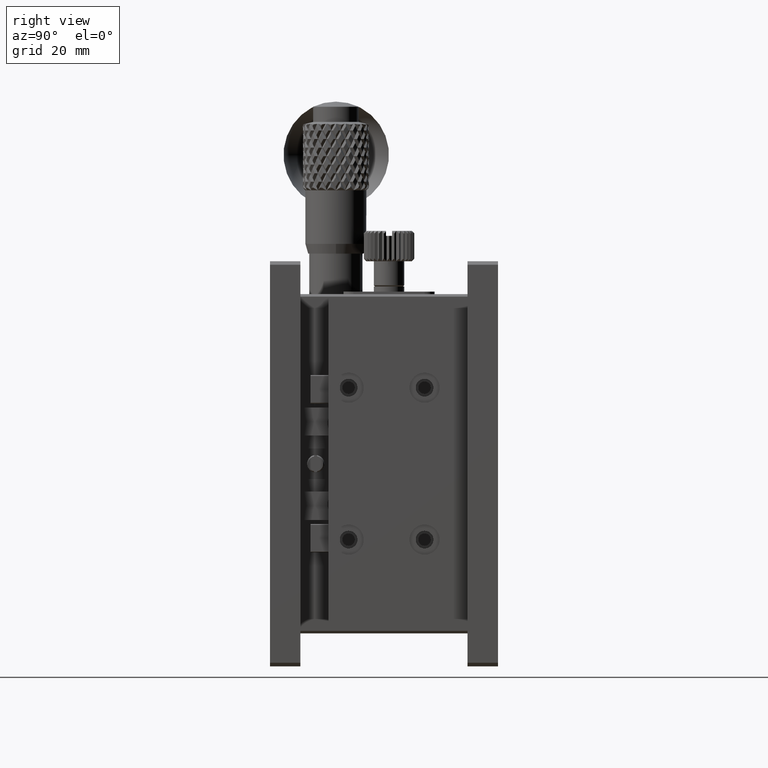
[diagram: clean part render]
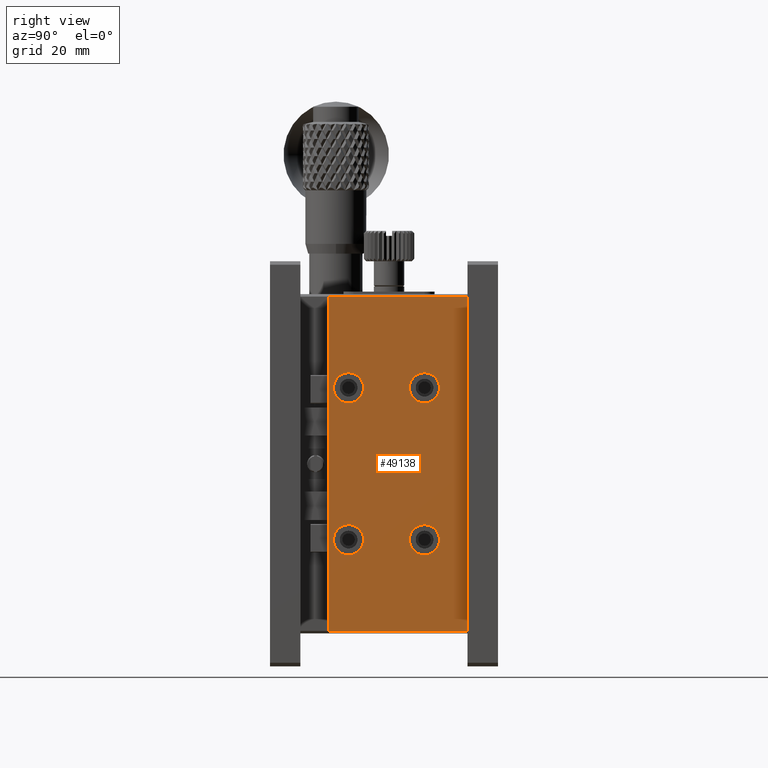
[diagram: same view with one face highlighted and labeled with its STEP entity id]
A machine part, right view. The second image highlights one B-rep face of the part: STEP entity #49138.
In plain terms, the highlighted planar face has unit normal (1, 0, 0).
Its self-contained STEP definition (entity closure, byte-faithful):
#313 = VECTOR ( 'NONE', #20671, 1000.000000000000000 ) ;
#353 = AXIS2_PLACEMENT_3D ( 'NONE', #12987, #38065, #64346 ) ;
#1200 = VERTEX_POINT ( 'NONE', #48546 ) ;
#2144 = ORIENTED_EDGE ( 'NONE', *, *, #6637, .T. ) ;
#3152 = AXIS2_PLACEMENT_3D ( 'NONE', #54036, #34799, #54376 ) ;
#4556 = CARTESIAN_POINT ( 'NONE',  ( 71.00000000000001421, 11.49999999999999645, -7.000000000000000000 ) ) ;
#4619 = FACE_BOUND ( 'NONE', #10042, .T. ) ;
#5283 = FACE_BOUND ( 'NONE', #7558, .T. ) ;
#5453 = DIRECTION ( 'NONE',  ( -1.000000000000000000, -0.000000000000000000, -0.000000000000000000 ) ) ;
#5699 = CIRCLE ( 'NONE', #353, 2.980000000000010196 ) ;
#6043 = DIRECTION ( 'NONE',  ( 0.000000000000000000, -1.000000000000000000, -0.000000000000000000 ) ) ;
#6637 = EDGE_CURVE ( 'NONE', #45237, #45237, #37740, .T. ) ;
#7558 = EDGE_LOOP ( 'NONE', ( #2144 ) ) ;
#10042 = EDGE_LOOP ( 'NONE', ( #59521 ) ) ;
#10113 = CIRCLE ( 'NONE', #51125, 2.980000000000010196 ) ;
#10530 = DIRECTION ( 'NONE',  ( 0.000000000000000000, 0.000000000000000000, -1.000000000000000000 ) ) ;
#11170 = CARTESIAN_POINT ( 'NONE',  ( 71.00000000000001421, 11.49999999999999645, -73.00000000000000000 ) ) ;
#11687 = CARTESIAN_POINT ( 'NONE',  ( 71.00000000000001421, 11.49999999999999645, -7.000000000000000000 ) ) ;
#12987 = CARTESIAN_POINT ( 'NONE',  ( 71.00000000000001421, 15.49999999999999645, -25.00000000000000000 ) ) ;
#15282 = VERTEX_POINT ( 'NONE', #35930 ) ;
#15401 = LINE ( 'NONE', #41791, #59741 ) ;
#16050 = LINE ( 'NONE', #4556, #47463 ) ;
#17120 = DIRECTION ( 'NONE',  ( 0.000000000000000000, 0.000000000000000000, -1.000000000000000000 ) ) ;
#19497 = EDGE_CURVE ( 'NONE', #57195, #47630, #46393, .T. ) ;
#19586 = CARTESIAN_POINT ( 'NONE',  ( 71.00000000000001421, 30.50000000000000000, -25.00000000000000000 ) ) ;
#20671 = DIRECTION ( 'NONE',  ( -0.000000000000000000, 1.000000000000000000, 0.000000000000000000 ) ) ;
#20845 = FACE_BOUND ( 'NONE', #54047, .T. ) ;
#21931 = EDGE_CURVE ( 'NONE', #1200, #1200, #5699, .T. ) ;
#27013 = ORIENTED_EDGE ( 'NONE', *, *, #21931, .T. ) ;
#28025 = EDGE_LOOP ( 'NONE', ( #27013 ) ) ;
#29842 = VERTEX_POINT ( 'NONE', #64294 ) ;
#31367 = FACE_BOUND ( 'NONE', #28025, .T. ) ;
#31683 = AXIS2_PLACEMENT_3D ( 'NONE', #11687, #48217, #17120 ) ;
#32131 = LINE ( 'NONE', #52036, #56770 ) ;
#33308 = CIRCLE ( 'NONE', #60286, 2.980000000000010196 ) ;
#33553 = EDGE_CURVE ( 'NONE', #50226, #51476, #32131, .T. ) ;
#34799 = DIRECTION ( 'NONE',  ( -1.000000000000000000, -0.000000000000000000, -0.000000000000000000 ) ) ;
#35930 = CARTESIAN_POINT ( 'NONE',  ( 71.00000000000001421, 30.50000000000000000, -27.98000000000001108 ) ) ;
#36373 = DIRECTION ( 'NONE',  ( 0.000000000000000000, 0.000000000000000000, -1.000000000000000000 ) ) ;
#36491 = DIRECTION ( 'NONE',  ( 0.000000000000000000, 0.000000000000000000, -1.000000000000000000 ) ) ;
#37740 = CIRCLE ( 'NONE', #3152, 2.980000000000010196 ) ;
#38065 = DIRECTION ( 'NONE',  ( -1.000000000000000000, -0.000000000000000000, -0.000000000000000000 ) ) ;
#38795 = CARTESIAN_POINT ( 'NONE',  ( 71.00000000000001421, 39.00000000000000000, -7.000000000000000888 ) ) ;
#39778 = ORIENTED_EDGE ( 'NONE', *, *, #19497, .T. ) ;
#41791 = CARTESIAN_POINT ( 'NONE',  ( 71.00000000000001421, 39.00000000000000000, 0.000000000000000000 ) ) ;
#43447 = CARTESIAN_POINT ( 'NONE',  ( 71.00000000000001421, 11.49999999999999645, -7.000000000000000000 ) ) ;
#43843 = ORIENTED_EDGE ( 'NONE', *, *, #33553, .T. ) ;
#45237 = VERTEX_POINT ( 'NONE', #55673 ) ;
#46393 = LINE ( 'NONE', #11170, #313 ) ;
#47463 = VECTOR ( 'NONE', #36373, 1000.000000000000000 ) ;
#47630 = VERTEX_POINT ( 'NONE', #49764 ) ;
#48217 = DIRECTION ( 'NONE',  ( 1.000000000000000000, 0.000000000000000000, 0.000000000000000000 ) ) ;
#48546 = CARTESIAN_POINT ( 'NONE',  ( 71.00000000000001421, 15.49999999999999645, -27.98000000000001108 ) ) ;
#49138 = ADVANCED_FACE ( 'NONE', ( #51618, #4619, #20845, #31367, #5283 ), #56345, .T. ) ;
#49300 = ORIENTED_EDGE ( 'NONE', *, *, #49835, .T. ) ;
#49764 = CARTESIAN_POINT ( 'NONE',  ( 71.00000000000001421, 39.00000000000000711, -73.00000000000000000 ) ) ;
#49835 = EDGE_CURVE ( 'NONE', #29842, #29842, #10113, .T. ) ;
#50226 = VERTEX_POINT ( 'NONE', #38795 ) ;
#51125 = AXIS2_PLACEMENT_3D ( 'NONE', #57520, #5453, #10530 ) ;
#51476 = VERTEX_POINT ( 'NONE', #43447 ) ;
#51618 = FACE_OUTER_BOUND ( 'NONE', #64810, .T. ) ;
#52036 = CARTESIAN_POINT ( 'NONE',  ( 71.00000000000001421, 11.49999999999999645, -7.000000000000000000 ) ) ;
#54036 = CARTESIAN_POINT ( 'NONE',  ( 71.00000000000001421, 30.50000000000000000, -55.00000000000000000 ) ) ;
#54047 = EDGE_LOOP ( 'NONE', ( #49300 ) ) ;
#54299 = ORIENTED_EDGE ( 'NONE', *, *, #60157, .T. ) ;
#54323 = CARTESIAN_POINT ( 'NONE',  ( 71.00000000000001421, 11.49999999999999645, -73.00000000000001421 ) ) ;
#54376 = DIRECTION ( 'NONE',  ( 0.000000000000000000, 0.000000000000000000, -1.000000000000000000 ) ) ;
#54519 = ORIENTED_EDGE ( 'NONE', *, *, #63663, .T. ) ;
#55673 = CARTESIAN_POINT ( 'NONE',  ( 71.00000000000001421, 30.50000000000000000, -57.98000000000001108 ) ) ;
#56345 = PLANE ( 'NONE',  #31683 ) ;
#56399 = DIRECTION ( 'NONE',  ( -1.000000000000000000, -0.000000000000000000, -0.000000000000000000 ) ) ;
#56620 = DIRECTION ( 'NONE',  ( 0.000000000000000000, -0.000000000000000000, 1.000000000000000000 ) ) ;
#56770 = VECTOR ( 'NONE', #6043, 1000.000000000000000 ) ;
#56863 = EDGE_CURVE ( 'NONE', #15282, #15282, #33308, .T. ) ;
#57195 = VERTEX_POINT ( 'NONE', #54323 ) ;
#57520 = CARTESIAN_POINT ( 'NONE',  ( 71.00000000000001421, 15.49999999999999645, -55.00000000000000000 ) ) ;
#59521 = ORIENTED_EDGE ( 'NONE', *, *, #56863, .T. ) ;
#59741 = VECTOR ( 'NONE', #56620, 1000.000000000000000 ) ;
#60157 = EDGE_CURVE ( 'NONE', #51476, #57195, #16050, .T. ) ;
#60286 = AXIS2_PLACEMENT_3D ( 'NONE', #19586, #56399, #36491 ) ;
#63663 = EDGE_CURVE ( 'NONE', #47630, #50226, #15401, .T. ) ;
#64294 = CARTESIAN_POINT ( 'NONE',  ( 71.00000000000001421, 15.49999999999999645, -57.98000000000001108 ) ) ;
#64346 = DIRECTION ( 'NONE',  ( 0.000000000000000000, 0.000000000000000000, -1.000000000000000000 ) ) ;
#64810 = EDGE_LOOP ( 'NONE', ( #54299, #39778, #54519, #43843 ) ) ;